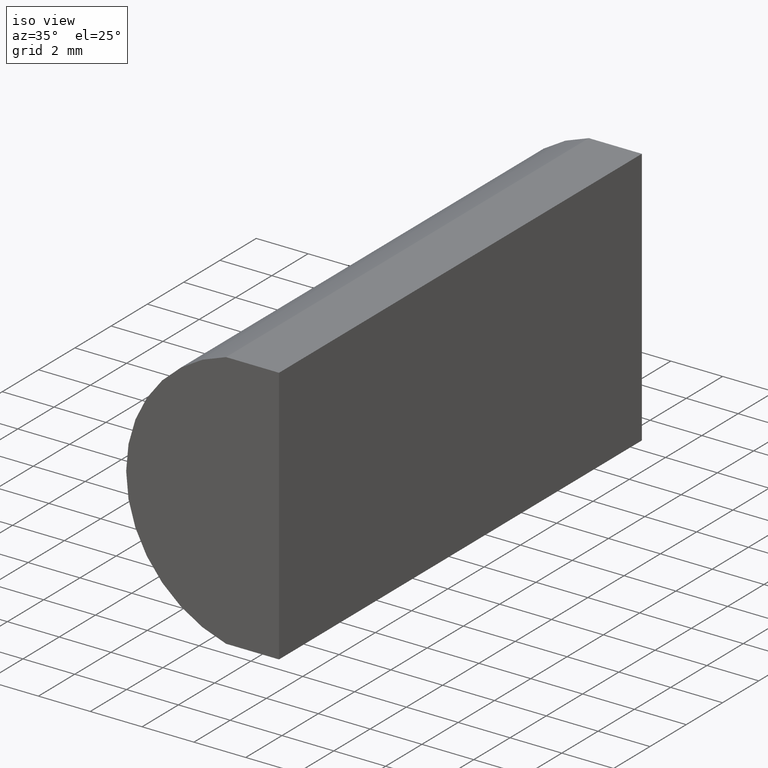
[diagram: clean part render]
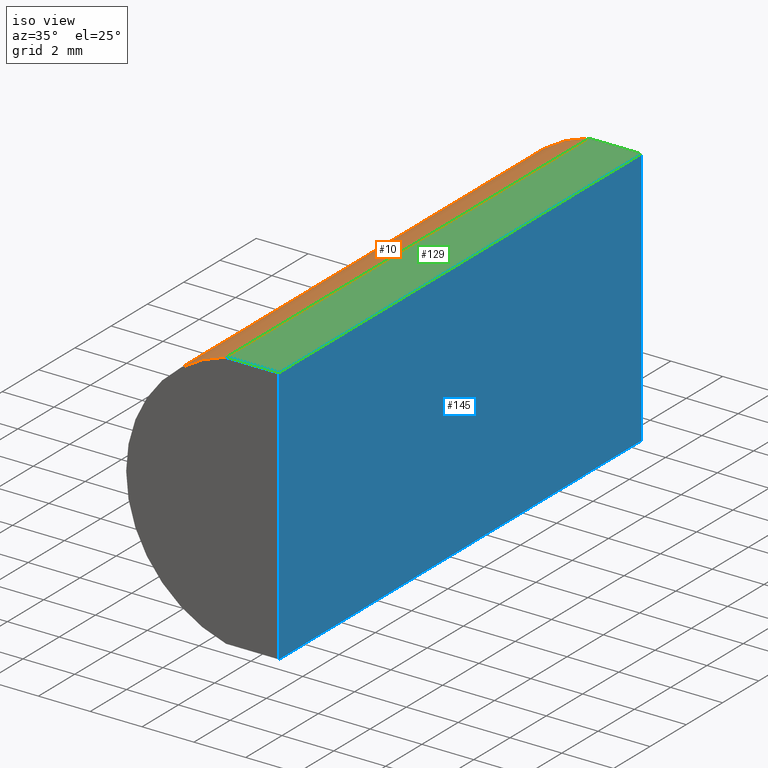
[diagram: same view with three faces highlighted in distinct colors, each labeled with its STEP entity id]
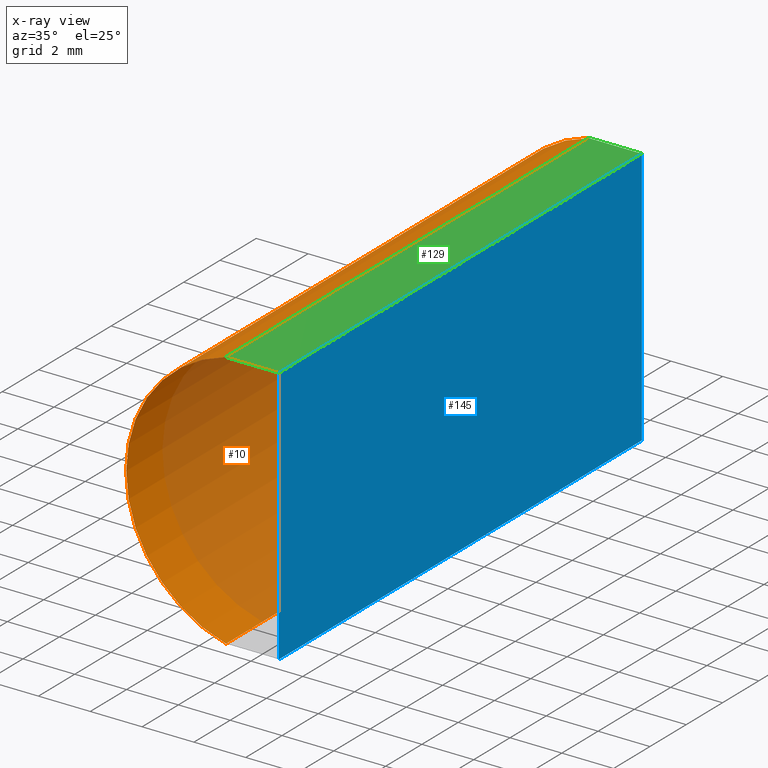
[diagram: x-ray of the same camera — body ghosted, the three highlighted faces saturated]
A machine part, iso view with three faces highlighted in distinct colors.
The next image is the same camera in x-ray (body ghosted, the three faces saturated) — at least one of them is partly hidden behind the body in this view.
Their STEP definitions:

[orange] entity #10 — the highlighted cylindrical surface (partial cylindrical patch) has radius 5.17 mm, axis along (-0, -1, -0).
#2 = AXIS2_PLACEMENT_3D ( 'NONE', #179, #9, #182 ) ;
#9 = DIRECTION ( 'NONE',  ( 0.0000000000000000000, 1.000000000000000000, 0.0000000000000000000 ) ) ;
#10 = ADVANCED_FACE ( 'NONE', ( #178 ), #190, .T. ) ;
#20 = VECTOR ( 'NONE', #91, 1000.000000000000000 ) ;
#21 = LINE ( 'NONE', #169, #45 ) ;
#23 = VERTEX_POINT ( 'NONE', #186 ) ;
#25 = ORIENTED_EDGE ( 'NONE', *, *, #167, .T. ) ;
#31 = CIRCLE ( 'NONE', #150, 5.170000000000000800 ) ;
#40 = CARTESIAN_POINT ( 'NONE',  ( 3.040327914802593700, 0.0000000000000000000, -5.000000000000000000 ) ) ;
#45 = VECTOR ( 'NONE', #194, 1000.000000000000000 ) ;
#46 = EDGE_CURVE ( 'NONE', #156, #183, #21, .T. ) ;
#51 = CARTESIAN_POINT ( 'NONE',  ( 3.040327914802593700, 20.00000000000000000, 5.000000000000000000 ) ) ;
#59 = ORIENTED_EDGE ( 'NONE', *, *, #119, .F. ) ;
#70 = VERTEX_POINT ( 'NONE', #40 ) ;
#90 = AXIS2_PLACEMENT_3D ( 'NONE', #191, #128, #136 ) ;
#91 = DIRECTION ( 'NONE',  ( -0.0000000000000000000, -1.000000000000000000, -0.0000000000000000000 ) ) ;
#94 = DIRECTION ( 'NONE',  ( 0.0000000000000000000, 1.000000000000000000, 0.0000000000000000000 ) ) ;
#96 = EDGE_CURVE ( 'NONE', #23, #70, #140, .T. ) ;
#109 = ORIENTED_EDGE ( 'NONE', *, *, #46, .F. ) ;
#110 = CIRCLE ( 'NONE', #2, 5.170000000000000800 ) ;
#118 = ORIENTED_EDGE ( 'NONE', *, *, #96, .T. ) ;
#119 = EDGE_CURVE ( 'NONE', #23, #156, #31, .T. ) ;
#124 = CARTESIAN_POINT ( 'NONE',  ( 3.040327914802593700, 0.0000000000000000000, 5.000000000000000000 ) ) ;
#128 = DIRECTION ( 'NONE',  ( -0.0000000000000000000, -1.000000000000000000, -0.0000000000000000000 ) ) ;
#136 = DIRECTION ( 'NONE',  ( 0.0000000000000000000, 0.0000000000000000000, -1.000000000000000000 ) ) ;
#140 = LINE ( 'NONE', #180, #20 ) ;
#149 = EDGE_LOOP ( 'NONE', ( #25, #109, #59, #118 ) ) ;
#150 = AXIS2_PLACEMENT_3D ( 'NONE', #185, #94, #168 ) ;
#156 = VERTEX_POINT ( 'NONE', #51 ) ;
#167 = EDGE_CURVE ( 'NONE', #70, #183, #110, .T. ) ;
#168 = DIRECTION ( 'NONE',  ( 0.0000000000000000000, 0.0000000000000000000, 1.000000000000000000 ) ) ;
#169 = CARTESIAN_POINT ( 'NONE',  ( 3.040327914802593700, 20.00000000000000000, 5.000000000000000000 ) ) ;
#178 = FACE_OUTER_BOUND ( 'NONE', #149, .T. ) ;
#179 = CARTESIAN_POINT ( 'NONE',  ( 4.355204334851265500, 0.0000000000000000000, 4.286263797015675000E-017 ) ) ;
#180 = CARTESIAN_POINT ( 'NONE',  ( 3.040327914802593700, 20.00000000000000000, -5.000000000000000000 ) ) ;
#182 = DIRECTION ( 'NONE',  ( 0.0000000000000000000, 0.0000000000000000000, 1.000000000000000000 ) ) ;
#183 = VERTEX_POINT ( 'NONE', #124 ) ;
#185 = CARTESIAN_POINT ( 'NONE',  ( 4.355204334851265500, 20.00000000000000000, 4.286263797015675000E-017 ) ) ;
#186 = CARTESIAN_POINT ( 'NONE',  ( 3.040327914802593700, 20.00000000000000000, -5.000000000000000000 ) ) ;
#190 = CYLINDRICAL_SURFACE ( 'NONE', #90, 5.170000000000000800 ) ;
#191 = CARTESIAN_POINT ( 'NONE',  ( 4.355204334851265500, 20.00000000000000000, 4.286263797015675000E-017 ) ) ;
#194 = DIRECTION ( 'NONE',  ( -0.0000000000000000000, -1.000000000000000000, -0.0000000000000000000 ) ) ;

[blue] entity #145 — the highlighted planar face has unit normal (-1, 0, 0).
#1 = ORIENTED_EDGE ( 'NONE', *, *, #113, .F. ) ;
#13 = CARTESIAN_POINT ( 'NONE',  ( 5.085204334851267700, 0.0000000000000000000, 5.000000000000000000 ) ) ;
#18 = EDGE_LOOP ( 'NONE', ( #116, #1, #139, #26 ) ) ;
#24 = EDGE_CURVE ( 'NONE', #123, #43, #71, .T. ) ;
#26 = ORIENTED_EDGE ( 'NONE', *, *, #24, .T. ) ;
#34 = CARTESIAN_POINT ( 'NONE',  ( 5.085204334851264100, 20.00000000000000000, -5.000000000000012400 ) ) ;
#36 = CARTESIAN_POINT ( 'NONE',  ( 5.085204334851267700, 20.00000000000000000, 5.000000000000000000 ) ) ;
#43 = VERTEX_POINT ( 'NONE', #13 ) ;
#47 = DIRECTION ( 'NONE',  ( -1.000000000000000000, 0.0000000000000000000, 3.469446951953609800E-016 ) ) ;
#48 = CARTESIAN_POINT ( 'NONE',  ( 5.085204334851264100, 0.0000000000000000000, -5.000000000000012400 ) ) ;
#49 = VECTOR ( 'NONE', #65, 1000.000000000000000 ) ;
#54 = LINE ( 'NONE', #82, #133 ) ;
#57 = LINE ( 'NONE', #202, #61 ) ;
#61 = VECTOR ( 'NONE', #143, 1000.000000000000000 ) ;
#65 = DIRECTION ( 'NONE',  ( -0.0000000000000000000, -1.000000000000000000, -0.0000000000000000000 ) ) ;
#67 = VERTEX_POINT ( 'NONE', #95 ) ;
#69 = EDGE_CURVE ( 'NONE', #123, #67, #54, .T. ) ;
#71 = LINE ( 'NONE', #192, #49 ) ;
#81 = VECTOR ( 'NONE', #165, 1000.000000000000000 ) ;
#82 = CARTESIAN_POINT ( 'NONE',  ( 5.085204334851264100, 20.00000000000000000, -5.000000000000012400 ) ) ;
#95 = CARTESIAN_POINT ( 'NONE',  ( 5.085204334851264100, 20.00000000000000000, -5.000000000000012400 ) ) ;
#113 = EDGE_CURVE ( 'NONE', #67, #144, #57, .T. ) ;
#116 = ORIENTED_EDGE ( 'NONE', *, *, #197, .T. ) ;
#123 = VERTEX_POINT ( 'NONE', #36 ) ;
#125 = DIRECTION ( 'NONE',  ( -3.469446951953609800E-016, -0.0000000000000000000, -1.000000000000000000 ) ) ;
#130 = CARTESIAN_POINT ( 'NONE',  ( 5.085204334851264100, 0.0000000000000000000, -5.000000000000012400 ) ) ;
#133 = VECTOR ( 'NONE', #125, 1000.000000000000000 ) ;
#139 = ORIENTED_EDGE ( 'NONE', *, *, #69, .F. ) ;
#143 = DIRECTION ( 'NONE',  ( -0.0000000000000000000, -1.000000000000000000, -0.0000000000000000000 ) ) ;
#144 = VERTEX_POINT ( 'NONE', #130 ) ;
#145 = ADVANCED_FACE ( 'NONE', ( #188 ), #181, .F. ) ;
#160 = AXIS2_PLACEMENT_3D ( 'NONE', #34, #47, #204 ) ;
#165 = DIRECTION ( 'NONE',  ( -3.469446951953609800E-016, -0.0000000000000000000, -1.000000000000000000 ) ) ;
#176 = LINE ( 'NONE', #48, #81 ) ;
#181 = PLANE ( 'NONE',  #160 ) ;
#188 = FACE_OUTER_BOUND ( 'NONE', #18, .T. ) ;
#192 = CARTESIAN_POINT ( 'NONE',  ( 5.085204334851267700, 20.00000000000000000, 5.000000000000000000 ) ) ;
#197 = EDGE_CURVE ( 'NONE', #43, #144, #176, .T. ) ;
#202 = CARTESIAN_POINT ( 'NONE',  ( 5.085204334851264100, 20.00000000000000000, -5.000000000000012400 ) ) ;
#204 = DIRECTION ( 'NONE',  ( 3.469446951953609800E-016, 0.0000000000000000000, 1.000000000000000000 ) ) ;

[green] entity #129 — the highlighted planar face has unit normal (0, 0, -1).
#13 = CARTESIAN_POINT ( 'NONE',  ( 5.085204334851267700, 0.0000000000000000000, 5.000000000000000000 ) ) ;
#14 = DIRECTION ( 'NONE',  ( 1.000000000000000000, 0.0000000000000000000, 0.0000000000000000000 ) ) ;
#19 = CARTESIAN_POINT ( 'NONE',  ( 3.040327914802593700, 0.0000000000000000000, 5.000000000000000000 ) ) ;
#21 = LINE ( 'NONE', #169, #45 ) ;
#24 = EDGE_CURVE ( 'NONE', #123, #43, #71, .T. ) ;
#28 = EDGE_CURVE ( 'NONE', #156, #123, #66, .T. ) ;
#36 = CARTESIAN_POINT ( 'NONE',  ( 5.085204334851267700, 20.00000000000000000, 5.000000000000000000 ) ) ;
#37 = EDGE_LOOP ( 'NONE', ( #80, #117, #77, #101 ) ) ;
#43 = VERTEX_POINT ( 'NONE', #13 ) ;
#44 = PLANE ( 'NONE',  #74 ) ;
#45 = VECTOR ( 'NONE', #194, 1000.000000000000000 ) ;
#46 = EDGE_CURVE ( 'NONE', #156, #183, #21, .T. ) ;
#49 = VECTOR ( 'NONE', #65, 1000.000000000000000 ) ;
#51 = CARTESIAN_POINT ( 'NONE',  ( 3.040327914802593700, 20.00000000000000000, 5.000000000000000000 ) ) ;
#65 = DIRECTION ( 'NONE',  ( -0.0000000000000000000, -1.000000000000000000, -0.0000000000000000000 ) ) ;
#66 = LINE ( 'NONE', #93, #157 ) ;
#71 = LINE ( 'NONE', #192, #49 ) ;
#74 = AXIS2_PLACEMENT_3D ( 'NONE', #173, #86, #152 ) ;
#77 = ORIENTED_EDGE ( 'NONE', *, *, #28, .F. ) ;
#79 = EDGE_CURVE ( 'NONE', #183, #43, #88, .T. ) ;
#80 = ORIENTED_EDGE ( 'NONE', *, *, #79, .T. ) ;
#86 = DIRECTION ( 'NONE',  ( 0.0000000000000000000, 0.0000000000000000000, -1.000000000000000000 ) ) ;
#88 = LINE ( 'NONE', #19, #175 ) ;
#93 = CARTESIAN_POINT ( 'NONE',  ( 3.040327914802593700, 20.00000000000000000, 5.000000000000000000 ) ) ;
#101 = ORIENTED_EDGE ( 'NONE', *, *, #46, .T. ) ;
#117 = ORIENTED_EDGE ( 'NONE', *, *, #24, .F. ) ;
#123 = VERTEX_POINT ( 'NONE', #36 ) ;
#124 = CARTESIAN_POINT ( 'NONE',  ( 3.040327914802593700, 0.0000000000000000000, 5.000000000000000000 ) ) ;
#126 = FACE_OUTER_BOUND ( 'NONE', #37, .T. ) ;
#129 = ADVANCED_FACE ( 'NONE', ( #126 ), #44, .F. ) ;
#147 = DIRECTION ( 'NONE',  ( 1.000000000000000000, 0.0000000000000000000, 0.0000000000000000000 ) ) ;
#152 = DIRECTION ( 'NONE',  ( -1.000000000000000000, 0.0000000000000000000, -0.0000000000000000000 ) ) ;
#156 = VERTEX_POINT ( 'NONE', #51 ) ;
#157 = VECTOR ( 'NONE', #14, 1000.000000000000000 ) ;
#169 = CARTESIAN_POINT ( 'NONE',  ( 3.040327914802593700, 20.00000000000000000, 5.000000000000000000 ) ) ;
#173 = CARTESIAN_POINT ( 'NONE',  ( 3.040327914802593700, 20.00000000000000000, 5.000000000000000000 ) ) ;
#175 = VECTOR ( 'NONE', #147, 1000.000000000000000 ) ;
#183 = VERTEX_POINT ( 'NONE', #124 ) ;
#192 = CARTESIAN_POINT ( 'NONE',  ( 5.085204334851267700, 20.00000000000000000, 5.000000000000000000 ) ) ;
#194 = DIRECTION ( 'NONE',  ( -0.0000000000000000000, -1.000000000000000000, -0.0000000000000000000 ) ) ;